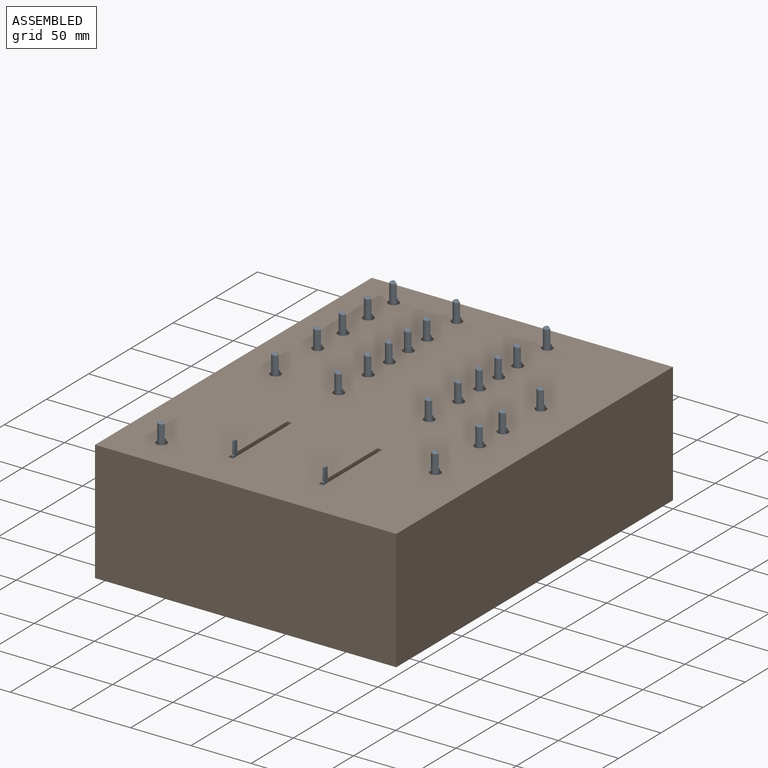
[diagram: assembled view]
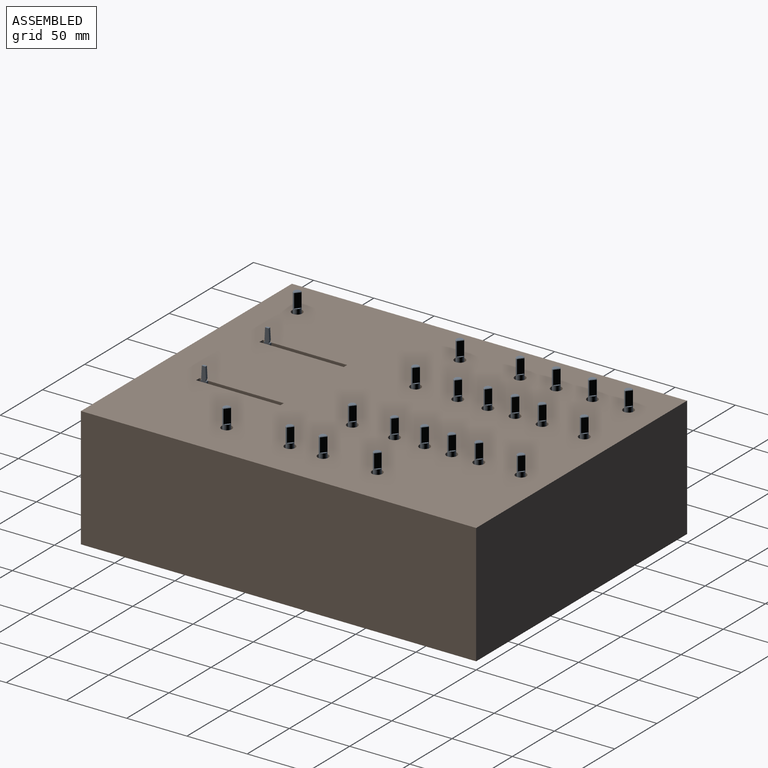
[diagram: assembled view, second angle]
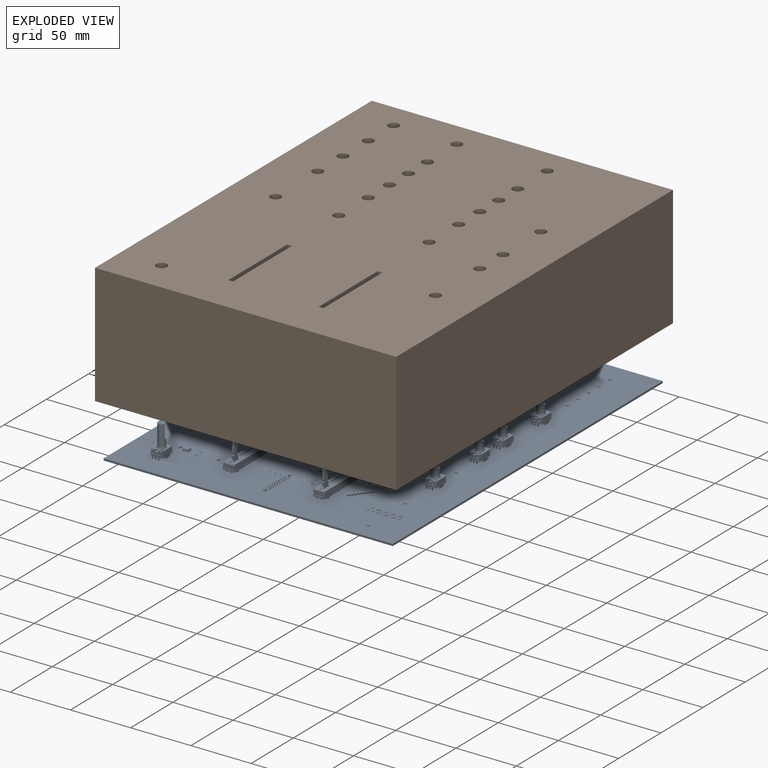
[diagram: exploded view]
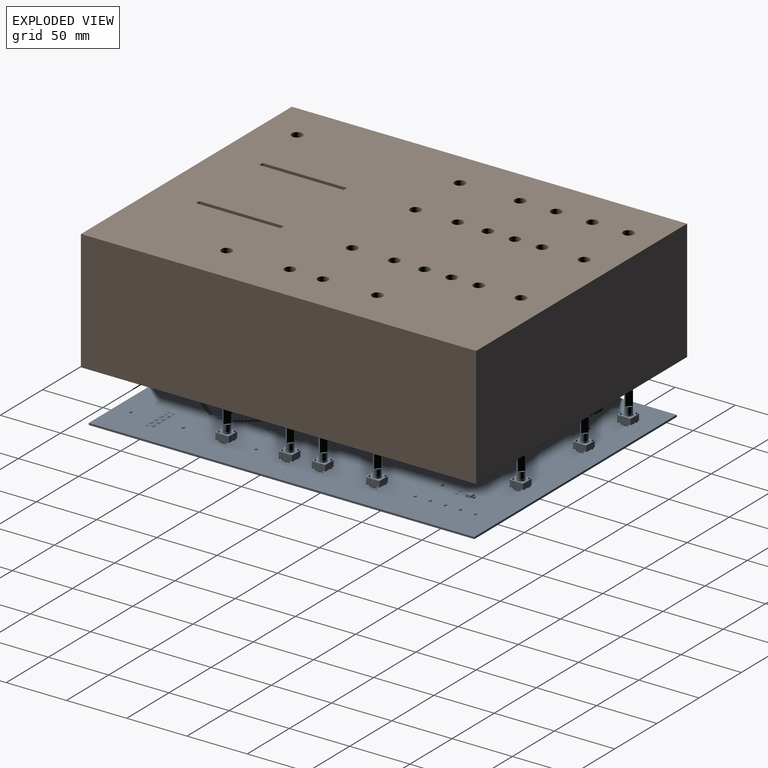
[diagram: exploded view, second angle]
FCSTD DOCUMENT  (FreeCAD 0.21R33771 (Git))
Label: assembly
License: All rights reserved
LicenseURL: http://en.wikipedia.org/wiki/All_rights_reserved
objects: App::Link×172, Part::Feature×19, App::Part×8, Sketcher::SketchObject×5, PartDesign::Pad×2, PartDesign::Pocket×2, PartDesign::Body×2, PartDesign::CoordinateSystem×1, Spreadsheet::Sheet×1
note: 35 computed .brp shape members not serialized (recipe doc carries the construction recipe); baked Part::Feature solids carry a one-line shape summary decoded from their .brp

FEATURE [PartDesign::CoordinateSystem] Local_CS_c454
  AttacherType = Attacher::AttachEngine3D
  MapMode = 2
  Support = -> [X_Axis001]
FEATURE [Part::Feature] Pcb_c454
  shape: bbox 240 x 320 x 1.6 mm, 169 faces (baked)
FEATURE [Sketcher::SketchObject] PCB_Sketch_c454
  FullyConstrained = false
  sketch-geometry (4):
    g0: LineSegment StartX=0 StartY=0 StartZ=0 EndX=240 EndY=0 EndZ=0
    g1: LineSegment StartX=240 StartY=-320 StartZ=0 EndX=240 EndY=0 EndZ=0
    g2: LineSegment StartX=0 StartY=-320 StartZ=0 EndX=0 EndY=0 EndZ=0
    g3: LineSegment StartX=240 StartY=-320 StartZ=0 EndX=0 EndY=-320 EndZ=0
  constraints (4):
    c: Coincident(g2,g3)
    c: Coincident(g0,g2)
    c: Coincident(g1,g3)
    c: Coincident(g0,g1)
FEATURE [App::Part] Board_Geoms_c454
  Group = -> [Pcb_c454,PCB_Sketch_c454]
  Origin = -> Origin002
FEATURE [Part::Feature] Shape  label="R208_R_0805_2012Metric_4c39b0defd06"
  Placement = pos=(106,-140,0) rot=(0,0,-1;1.5708rad)
  shape: bbox 1.2 x 2 x 0.45 mm, 26 faces (baked)
FEATURE [Part::Feature] Part__Feature  label="PTV09A-4225F-B104"
  shape: bbox 11.4 x 10.6 x 11 mm, 100 faces (baked)
FEATURE [Part::Feature] Part__Feature001  label="PTV09A-4225F-B105"
  shape: bbox 7 x 18.9 x 7 mm, 11 faces (baked)
FEATURE [Part::Feature] Part__Feature002  label="PTV09A-4225F-B106"
  shape: bbox 1.5 x 6.725 x 0.6 mm, 19 faces (baked)
FEATURE [Part::Feature] Part__Feature003  label="PTV09A-4225F-B107"
  shape: bbox 1.5 x 6.725 x 0.6 mm, 19 faces (baked)
FEATURE [Part::Feature] Part__Feature004  label="PTV09A-4225F-B108"
  shape: bbox 1.5 x 6.725 x 0.6 mm, 19 faces (baked)
FEATURE [Part::Feature] Part__Feature005  label="PTV09A-4225F-B109"
  shape: bbox 9.45 x 7.4 x 12 mm, 34 faces (baked)
FEATURE [App::Part] PTV09A_4225F_B104  label="RV402_PTV09A-4225F-B110_fbfc8b850fa7"
  Group = -> [Part__Feature,Part__Feature001,Part__Feature002,Part__Feature003,Part__Feature004,Part__Feature005]
  Origin = -> Origin008
  Placement = pos=(30,-109.05,0) rot=(1,0,0;1.5708rad)
FEATURE [App::Link] RV402_PTV09A_4225F_B110_fbfc8b850fa7_ln_  label="RV418_PTV09A-4225F-B110_2d688163e7d1"
  LinkPlacement = pos=(157.5,-54.05,0) rot=(1,0,0;1.5708rad)
  LinkedObject = -> PTV09A_4225F_B104
  Placement = pos=(157.5,-54.05,0) rot=(1,0,0;1.5708rad)
FEATURE [Part::Feature] Shape001  label="D216_D_0805_5594bfa4e61c"
  Placement = pos=(141.025,-110,0) rot=(0,0,1;0rad)
  shape: bbox 2 x 1.27 x 0.8 mm, 39 faces (baked)
FEATURE [App::Link] RV402_PTV09A_4225F_B110_fbfc8b850fa7_ln_001  label="RV417_PTV09A-4225F-B110_7fe4f421bce8"
  LinkPlacement = pos=(210,-226.55,0) rot=(1,0,0;1.5708rad)
  LinkedObject = -> PTV09A_4225F_B104
  Placement = pos=(210,-226.55,0) rot=(1,0,0;1.5708rad)
FEATURE [App::Link] R208_R_0805_2012Metric_4c39b0defd06_ln_  label="R312_R_0805_2012Metric_ef045fc08535"
  LinkPlacement = pos=(178,-214,0) rot=(0,0,1;1.5708rad)
  LinkedObject = -> Shape
  Placement = pos=(178,-214,0) rot=(0,0,1;1.5708rad)
FEATURE [App::Link] R208_R_0805_2012Metric_4c39b0defd06_ln_001  label="R219_R_0805_2012Metric_111bd99cd9e1"
  LinkPlacement = pos=(117,-140,0) rot=(0,0,-1;1.5708rad)
  LinkedObject = -> Shape
  Placement = pos=(117,-140,0) rot=(0,0,-1;1.5708rad)
FEATURE [App::Link] R208_R_0805_2012Metric_4c39b0defd06_ln_002  label="R240_R_0805_2012Metric_e68515676e1e"
  LinkPlacement = pos=(143,-242,0) rot=(0,0,1;3.14159rad)
  LinkedObject = -> Shape
  Placement = pos=(143,-242,0) rot=(0,0,1;3.14159rad)
FEATURE [App::Link] R208_R_0805_2012Metric_4c39b0defd06_ln_003  label="R206_R_0805_2012Metric_35fbc29ccc57"
  LinkPlacement = pos=(102,-140,0) rot=(0,0,-1;1.5708rad)
  LinkedObject = -> Shape
  Placement = pos=(102,-140,0) rot=(0,0,-1;1.5708rad)
FEATURE [App::Link] D216_D_0805_5594bfa4e61c_ln_  label="D227_D_0805_f1191d759c10"
  LinkPlacement = pos=(30,-215,0) rot=(0,0,1;0rad)
  LinkedObject = -> Shape001
  Placement = pos=(30,-215,0) rot=(0,0,1;0rad)
FEATURE [App::Link] R208_R_0805_2012Metric_4c39b0defd06_ln_004  label="R332_R_0805_2012Metric_aa549b432111"
  LinkPlacement = pos=(206,-281,0) rot=(0,0,1;1.5708rad)
  LinkedObject = -> Shape
  Placement = pos=(206,-281,0) rot=(0,0,1;1.5708rad)
FEATURE [App::Link] RV402_PTV09A_4225F_B110_fbfc8b850fa7_ln_002  label="RV411_PTV09A-4225F-B110_0f7be24aa515"
  LinkPlacement = pos=(82.5,-99.05,0) rot=(1,0,0;1.5708rad)
  LinkedObject = -> PTV09A_4225F_B104
  Placement = pos=(82.5,-99.05,0) rot=(1,0,0;1.5708rad)
FEATURE [App::Link] D216_D_0805_5594bfa4e61c_ln_001  label="D226_D_0805_973987f7510b"
  LinkPlacement = pos=(30,-185,0) rot=(0,0,1;0rad)
  LinkedObject = -> Shape001
  Placement = pos=(30,-185,0) rot=(0,0,1;0rad)
FEATURE [App::Link] D216_D_0805_5594bfa4e61c_ln_002  label="D228_D_0805_9972d4551b44"
  LinkPlacement = pos=(210,-262.5,0) rot=(0,0,1;3.14159rad)
  LinkedObject = -> Shape001
  Placement = pos=(210,-262.5,0) rot=(0,0,1;3.14159rad)
FEATURE [Part::Feature] Shape002  label="C205_C_0805_2012Metric_57fc318d2a2e"
  Placement = pos=(108,-238,0) rot=(0,0,1;3.14159rad)
  shape: bbox 2 x 1.25 x 1.25 mm, 28 faces (baked)
FEATURE [App::Link] R208_R_0805_2012Metric_4c39b0defd06_ln_005  label="R213_R_0805_2012Metric_71fda06ab67b"
  LinkPlacement = pos=(140,-140,0) rot=(0,0,-1;1.5708rad)
  LinkedObject = -> Shape
  Placement = pos=(140,-140,0) rot=(0,0,-1;1.5708rad)
FEATURE [App::Link] C205_C_0805_2012Metric_57fc318d2a2e_ln_  label="C501_C_0805_2012Metric_9183103fb27e"
  LinkPlacement = pos=(66,-278,0) rot=(0,0,1;1.5708rad)
  LinkedObject = -> Shape002
  Placement = pos=(66,-278,0) rot=(0,0,1;1.5708rad)
FEATURE [App::Link] R208_R_0805_2012Metric_4c39b0defd06_ln_006  label="R238_R_0805_2012Metric_c2040b682ab9"
  LinkPlacement = pos=(143,-246,0) rot=(0,0,1;3.14159rad)
  LinkedObject = -> Shape
  Placement = pos=(143,-246,0) rot=(0,0,1;3.14159rad)
FEATURE [App::Link] R208_R_0805_2012Metric_4c39b0defd06_ln_007  label="R315_R_0805_2012Metric_a91a2a27738c"
  LinkPlacement = pos=(215,-285,0) rot=(0,0,1;1.5708rad)
  LinkedObject = -> Shape
  Placement = pos=(215,-285,0) rot=(0,0,1;1.5708rad)
FEATURE [App::Link] C205_C_0805_2012Metric_57fc318d2a2e_ln_001  label="C304_C_0805_2012Metric_e8270bf949c6"
  LinkPlacement = pos=(175.5,-232,0) rot=(0,0,1;3.14159rad)
  LinkedObject = -> Shape002
  Placement = pos=(175.5,-232,0) rot=(0,0,1;3.14159rad)
FEATURE [App::Link] R208_R_0805_2012Metric_4c39b0defd06_ln_008  label="R218_R_0805_2012Metric_d44f68ebda2a"
  LinkPlacement = pos=(115,-140,0) rot=(0,0,-1;1.5708rad)
  LinkedObject = -> Shape
  Placement = pos=(115,-140,0) rot=(0,0,-1;1.5708rad)
FEATURE [App::Link] R208_R_0805_2012Metric_4c39b0defd06_ln_009  label="R306_R_0805_2012Metric_cc47268ca4a4"
  LinkPlacement = pos=(49,-229,0) rot=(0,0,1;1.5708rad)
  LinkedObject = -> Shape
  Placement = pos=(49,-229,0) rot=(0,0,1;1.5708rad)
FEATURE [App::Link] C205_C_0805_2012Metric_57fc318d2a2e_ln_002  label="C204_C_0805_2012Metric_fa1396efef3d"
  LinkPlacement = pos=(109,-186.5,0) rot=(0,0,-1;1.5708rad)
  LinkedObject = -> Shape002
  Placement = pos=(109,-186.5,0) rot=(0,0,-1;1.5708rad)
FEATURE [App::Link] R208_R_0805_2012Metric_4c39b0defd06_ln_010  label="R333_R_0805_2012Metric_ce0cf9ada83e"
  LinkPlacement = pos=(40,-225,0) rot=(0,0,1;1.5708rad)
  LinkedObject = -> Shape
  Placement = pos=(40,-225,0) rot=(0,0,1;1.5708rad)
FEATURE [App::Link] R208_R_0805_2012Metric_4c39b0defd06_ln_011  label="R203_R_0805_2012Metric_47c25ef46f04"
  LinkPlacement = pos=(96,-140,0) rot=(0,0,-1;1.5708rad)
  LinkedObject = -> Shape
  Placement = pos=(96,-140,0) rot=(0,0,-1;1.5708rad)
FEATURE [App::Link] R208_R_0805_2012Metric_4c39b0defd06_ln_012  label="R316_R_0805_2012Metric_ca1573e6cbf5"
  LinkPlacement = pos=(177,-210,0) rot=(0,0,1;1.5708rad)
  LinkedObject = -> Shape
  Placement = pos=(177,-210,0) rot=(0,0,1;1.5708rad)
FEATURE [App::Link] R208_R_0805_2012Metric_4c39b0defd06_ln_013  label="R216_R_0805_2012Metric_f6e6accf18e9"
  LinkPlacement = pos=(134,-140,0) rot=(0,0,-1;1.5708rad)
  LinkedObject = -> Shape
  Placement = pos=(134,-140,0) rot=(0,0,-1;1.5708rad)
FEATURE [App::Link] R208_R_0805_2012Metric_4c39b0defd06_ln_014  label="R307_R_0805_2012Metric_32e96b299db5"
  LinkPlacement = pos=(217,-285,0) rot=(0,0,1;1.5708rad)
  LinkedObject = -> Shape
  Placement = pos=(217,-285,0) rot=(0,0,1;1.5708rad)
FEATURE [App::Link] D216_D_0805_5594bfa4e61c_ln_003  label="D206_D_0805_2ef9e814d562"
  LinkPlacement = pos=(98.975,-95,0) rot=(0,0,1;3.14159rad)
  LinkedObject = -> Shape001
  Placement = pos=(98.975,-95,0) rot=(0,0,1;3.14159rad)
FEATURE [App::Link] D216_D_0805_5594bfa4e61c_ln_004  label="D213_D_0805_f98dc4f97d3c"
  LinkPlacement = pos=(141.025,-87.5,0) rot=(0,0,1;0rad)
  LinkedObject = -> Shape001
  Placement = pos=(141.025,-87.5,0) rot=(0,0,1;0rad)
FEATURE [App::Link] C205_C_0805_2012Metric_57fc318d2a2e_ln_003  label="C312_C_0805_2012Metric_3116a6c9cd6d"
  LinkPlacement = pos=(172.5,-228,0) rot=(0,0,1;3.14159rad)
  LinkedObject = -> Shape002
  Placement = pos=(172.5,-228,0) rot=(0,0,1;3.14159rad)
FEATURE [App::Link] C205_C_0805_2012Metric_57fc318d2a2e_ln_004  label="C302_C_0805_2012Metric_8ef3d9fda477"
  LinkPlacement = pos=(177,-234,0) rot=(0,0,1;3.14159rad)
  LinkedObject = -> Shape002
  Placement = pos=(177,-234,0) rot=(0,0,1;3.14159rad)
FEATURE [App::Link] R208_R_0805_2012Metric_4c39b0defd06_ln_015  label="R310_R_0805_2012Metric_72e5e267fd08"
  LinkPlacement = pos=(50,-225,0) rot=(0,0,1;1.5708rad)
  LinkedObject = -> Shape
  Placement = pos=(50,-225,0) rot=(0,0,1;1.5708rad)
FEATURE [App::Link] R208_R_0805_2012Metric_4c39b0defd06_ln_016  label="R327_R_0805_2012Metric_acd2e66d89b7"
  LinkPlacement = pos=(212,-281,0) rot=(0,0,1;1.5708rad)
  LinkedObject = -> Shape
  Placement = pos=(212,-281,0) rot=(0,0,1;1.5708rad)
FEATURE [App::Link] D216_D_0805_5594bfa4e61c_ln_005  label="D221_D_0805_d2ebfaa61c48"
  LinkPlacement = pos=(120,-87.5,0) rot=(0,0,1;3.14159rad)
  LinkedObject = -> Shape001
  Placement = pos=(120,-87.5,0) rot=(0,0,1;3.14159rad)
FEATURE [App::Link] C205_C_0805_2012Metric_57fc318d2a2e_ln_005  label="C102_C_0805_2012Metric_8e58a18353ef"
  LinkPlacement = pos=(120,-271,0) rot=(0,0,1;0rad)
  LinkedObject = -> Shape002
  Placement = pos=(120,-271,0) rot=(0,0,1;0rad)
FEATURE [App::Link] RV402_PTV09A_4225F_B110_fbfc8b850fa7_ln_003  label="RV405_PTV09A-4225F-B110_777df1af5e7b"
  LinkPlacement = pos=(210,-101.55,0) rot=(1,0,0;1.5708rad)
  LinkedObject = -> PTV09A_4225F_B104
  Placement = pos=(210,-101.55,0) rot=(1,0,0;1.5708rad)
FEATURE [App::Link] C205_C_0805_2012Metric_57fc318d2a2e_ln_006  label="C303_C_0805_2012Metric_67ba86686d49"
  LinkPlacement = pos=(171,-274,0) rot=(0,0,1;3.14159rad)
  LinkedObject = -> Shape002
  Placement = pos=(171,-274,0) rot=(0,0,1;3.14159rad)
FEATURE [App::Link] R208_R_0805_2012Metric_4c39b0defd06_ln_017  label="R221_R_0805_2012Metric_24614dd06e51"
  LinkPlacement = pos=(121,-140,0) rot=(0,0,-1;1.5708rad)
  LinkedObject = -> Shape
  Placement = pos=(121,-140,0) rot=(0,0,-1;1.5708rad)
FEATURE [App::Link] D216_D_0805_5594bfa4e61c_ln_006  label="D238_D_0805_83ee238d2820"
  LinkPlacement = pos=(210,-70,0) rot=(0,0,1;3.14159rad)
  LinkedObject = -> Shape001
  Placement = pos=(210,-70,0) rot=(0,0,1;3.14159rad)
FEATURE [App::Link] R208_R_0805_2012Metric_4c39b0defd06_ln_018  label="R225_R_0805_2012Metric_8f8ce5a6a82c"
  LinkPlacement = pos=(98,-242,0) rot=(0,0,1;0rad)
  LinkedObject = -> Shape
  Placement = pos=(98,-242,0) rot=(0,0,1;0rad)
FEATURE [App::Link] R208_R_0805_2012Metric_4c39b0defd06_ln_019  label="R311_R_0805_2012Metric_55c13a9a11a5"
  LinkPlacement = pos=(218,-281,0) rot=(0,0,1;1.5708rad)
  LinkedObject = -> Shape
  Placement = pos=(218,-281,0) rot=(0,0,1;1.5708rad)
FEATURE [App::Link] R208_R_0805_2012Metric_4c39b0defd06_ln_020  label="R305_R_0805_2012Metric_9d8b24ee2285"
  LinkPlacement = pos=(221,-285,0) rot=(0,0,1;1.5708rad)
  LinkedObject = -> Shape
  Placement = pos=(221,-285,0) rot=(0,0,1;1.5708rad)
FEATURE [App::Link] C205_C_0805_2012Metric_57fc318d2a2e_ln_007  label="C316_C_0805_2012Metric_57bf25107868"
  LinkPlacement = pos=(171,-226,0) rot=(0,0,1;3.14159rad)
  LinkedObject = -> Shape002
  Placement = pos=(171,-226,0) rot=(0,0,1;3.14159rad)
FEATURE [App::Link] RV402_PTV09A_4225F_B110_fbfc8b850fa7_ln_004  label="RV420_PTV09A-4225F-B110_34591843202a"
  LinkPlacement = pos=(157.5,-159.05,0) rot=(1,0,0;1.5708rad)
  LinkedObject = -> PTV09A_4225F_B104
  Placement = pos=(157.5,-159.05,0) rot=(1,0,0;1.5708rad)
FEATURE [App::Link] D216_D_0805_5594bfa4e61c_ln_007  label="D210_D_0805_c96be0ac7fab"
  LinkPlacement = pos=(141.025,-65,0) rot=(0,0,1;0rad)
  LinkedObject = -> Shape001
  Placement = pos=(141.025,-65,0) rot=(0,0,1;0rad)
FEATURE [App::Link] R208_R_0805_2012Metric_4c39b0defd06_ln_021  label="R502_R_0805_2012Metric_57ad433b3f67"
  LinkPlacement = pos=(49,-274,0) rot=(0,0,1;3.14159rad)
  LinkedObject = -> Shape
  Placement = pos=(49,-274,0) rot=(0,0,1;3.14159rad)
FEATURE [App::Link] R208_R_0805_2012Metric_4c39b0defd06_ln_022  label="R308_R_0805_2012Metric_ac712e10e020"
  LinkPlacement = pos=(52,-225,0) rot=(0,0,1;1.5708rad)
  LinkedObject = -> Shape
  Placement = pos=(52,-225,0) rot=(0,0,1;1.5708rad)
FEATURE [App::Link] D216_D_0805_5594bfa4e61c_ln_008  label="D220_D_0805_52212993868f"
  LinkPlacement = pos=(120,-80,0) rot=(0,0,1;3.14159rad)
  LinkedObject = -> Shape001
  Placement = pos=(120,-80,0) rot=(0,0,1;3.14159rad)
FEATURE [App::Link] RV402_PTV09A_4225F_B110_fbfc8b850fa7_ln_005  label="RV404_PTV09A-4225F-B110_428bc7d2de2c"
  LinkPlacement = pos=(30,-79.05,0) rot=(1,0,0;1.5708rad)
  LinkedObject = -> PTV09A_4225F_B104
  Placement = pos=(30,-79.05,0) rot=(1,0,0;1.5708rad)
FEATURE [App::Link] RV402_PTV09A_4225F_B110_fbfc8b850fa7_ln_006  label="RV419_PTV09A-4225F-B110_c9e950f6c76d"
  LinkPlacement = pos=(157.5,-99.05,0) rot=(1,0,0;1.5708rad)
  LinkedObject = -> PTV09A_4225F_B104
  Placement = pos=(157.5,-99.05,0) rot=(1,0,0;1.5708rad)
FEATURE [App::Link] C205_C_0805_2012Metric_57fc318d2a2e_ln_008  label="C601_C_0805_2012Metric_e417f57173ae"
  LinkPlacement = pos=(50,-65,0) rot=(0,0,1;0rad)
  LinkedObject = -> Shape002
  Placement = pos=(50,-65,0) rot=(0,0,1;0rad)
FEATURE [App::Link] D216_D_0805_5594bfa4e61c_ln_009  label="D239_D_0805_84c5e8a55d69"
  LinkPlacement = pos=(210,-32.5,0) rot=(0,0,1;3.14159rad)
  LinkedObject = -> Shape001
  Placement = pos=(210,-32.5,0) rot=(0,0,1;3.14159rad)
FEATURE [App::Link] D216_D_0805_5594bfa4e61c_ln_010  label="D215_D_0805_a1d5e6c136e6"
  LinkPlacement = pos=(141.025,-102.5,0) rot=(0,0,1;0rad)
  LinkedObject = -> Shape001
  Placement = pos=(141.025,-102.5,0) rot=(0,0,1;0rad)
FEATURE [Part::Feature] Shape003  label="U701_SOIC_8_39x49mm_P127mm_2f58332c61cc"
  Placement = pos=(188,-40,0) rot=(0,0,1;0rad)
  shape: bbox 6 x 4.9 x 1.75 mm, 156 faces (baked)
FEATURE [App::Link] RV402_PTV09A_4225F_B110_fbfc8b850fa7_ln_007  label="RV407_PTV09A-4225F-B110_546b22319ea3"
  LinkPlacement = pos=(82.5,-76.55,0) rot=(1,0,0;1.5708rad)
  LinkedObject = -> PTV09A_4225F_B104
  Placement = pos=(82.5,-76.55,0) rot=(1,0,0;1.5708rad)
FEATURE [App::Link] R208_R_0805_2012Metric_4c39b0defd06_ln_023  label="R230_R_0805_2012Metric_2bcdb1c95b5a"
  LinkPlacement = pos=(143,-252,0) rot=(0,0,1;0rad)
  LinkedObject = -> Shape
  Placement = pos=(143,-252,0) rot=(0,0,1;0rad)
FEATURE [App::Link] R208_R_0805_2012Metric_4c39b0defd06_ln_024  label="R309_R_0805_2012Metric_8528c9f19a28"
  LinkPlacement = pos=(220,-281,0) rot=(0,0,1;1.5708rad)
  LinkedObject = -> Shape
  Placement = pos=(220,-281,0) rot=(0,0,1;1.5708rad)
FEATURE [Part::Feature] Shape004  label="U301_TSSOP_24_44x78mm_P065mm_04e58543ee46"
  Placement = pos=(180,-250,0) rot=(0,0,1;1.5708rad)
  shape: bbox 7.8 x 6.4 x 0.97 mm, 396 faces (baked)
FEATURE [App::Link] R208_R_0805_2012Metric_4c39b0defd06_ln_025  label="R303_R_0805_2012Metric_fc88b7861eef"
  LinkPlacement = pos=(140,-272,0) rot=(0,0,-1;1.5708rad)
  LinkedObject = -> Shape
  Placement = pos=(140,-272,0) rot=(0,0,-1;1.5708rad)
FEATURE [App::Link] D216_D_0805_5594bfa4e61c_ln_011  label="D233_D_0805_8746985ae42c"
  LinkPlacement = pos=(30,-230,0) rot=(0,0,1;0rad)
  LinkedObject = -> Shape001
  Placement = pos=(30,-230,0) rot=(0,0,1;0rad)
FEATURE [App::Link] D216_D_0805_5594bfa4e61c_ln_012  label="D217_D_0805_2a3ada436470"
  LinkPlacement = pos=(120,-57.5,0) rot=(0,0,1;3.14159rad)
  LinkedObject = -> Shape001
  Placement = pos=(120,-57.5,0) rot=(0,0,1;3.14159rad)
FEATURE [App::Link] R208_R_0805_2012Metric_4c39b0defd06_ln_026  label="R334_R_0805_2012Metric_2f2dfa104db6"
  LinkPlacement = pos=(209,-285,0) rot=(0,0,1;1.5708rad)
  LinkedObject = -> Shape
  Placement = pos=(209,-285,0) rot=(0,0,1;1.5708rad)
FEATURE [App::Link] RV402_PTV09A_4225F_B110_fbfc8b850fa7_ln_008  label="RV421_PTV09A-4225F-B110_5a81db7f2a9e"
  LinkPlacement = pos=(157.5,-19.05,0) rot=(1,0,0;1.5708rad)
  LinkedObject = -> PTV09A_4225F_B104
  Placement = pos=(157.5,-19.05,0) rot=(1,0,0;1.5708rad)
FEATURE [App::Link] R208_R_0805_2012Metric_4c39b0defd06_ln_027  label="R223_R_0805_2012Metric_c6ebd7290bac"
  LinkPlacement = pos=(125,-140,0) rot=(0,0,-1;1.5708rad)
  LinkedObject = -> Shape
  Placement = pos=(125,-140,0) rot=(0,0,-1;1.5708rad)
FEATURE [App::Link] R208_R_0805_2012Metric_4c39b0defd06_ln_028  label="R227_R_0805_2012Metric_e444b336612b"
  LinkPlacement = pos=(98,-248,0) rot=(0,0,1;0rad)
  LinkedObject = -> Shape
  Placement = pos=(98,-248,0) rot=(0,0,1;0rad)
FEATURE [App::Link] R208_R_0805_2012Metric_4c39b0defd06_ln_029  label="R211_R_0805_2012Metric_4a630d97fa43"
  LinkPlacement = pos=(144,-140,0) rot=(0,0,-1;1.5708rad)
  LinkedObject = -> Shape
  Placement = pos=(144,-140,0) rot=(0,0,-1;1.5708rad)
FEATURE [App::Link] R208_R_0805_2012Metric_4c39b0defd06_ln_030  label="R212_R_0805_2012Metric_4456a0502743"
  LinkPlacement = pos=(142,-140,0) rot=(0,0,-1;1.5708rad)
  LinkedObject = -> Shape
  Placement = pos=(142,-140,0) rot=(0,0,-1;1.5708rad)
FEATURE [App::Link] R208_R_0805_2012Metric_4c39b0defd06_ln_031  label="R233_R_0805_2012Metric_96aa5766d6ff"
  LinkPlacement = pos=(98,-250,0) rot=(0,0,1;0rad)
  LinkedObject = -> Shape
  Placement = pos=(98,-250,0) rot=(0,0,1;0rad)
FEATURE [App::Link] R208_R_0805_2012Metric_4c39b0defd06_ln_032  label="R314_R_0805_2012Metric_7f0e5e389910"
  LinkPlacement = pos=(47,-229,0) rot=(0,0,1;1.5708rad)
  LinkedObject = -> Shape
  Placement = pos=(47,-229,0) rot=(0,0,1;1.5708rad)
FEATURE [App::Link] R208_R_0805_2012Metric_4c39b0defd06_ln_033  label="R222_R_0805_2012Metric_d1e6bee3c121"
  LinkPlacement = pos=(123,-140,0) rot=(0,0,-1;1.5708rad)
  LinkedObject = -> Shape
  Placement = pos=(123,-140,0) rot=(0,0,-1;1.5708rad)
FEATURE [App::Link] R208_R_0805_2012Metric_4c39b0defd06_ln_034  label="R207_R_0805_2012Metric_a58e80ceedb3"
  LinkPlacement = pos=(104,-140,0) rot=(0,0,-1;1.5708rad)
  LinkedObject = -> Shape
  Placement = pos=(104,-140,0) rot=(0,0,-1;1.5708rad)
FEATURE [App::Link] R208_R_0805_2012Metric_4c39b0defd06_ln_035  label="R226_R_0805_2012Metric_6a41c46d4445"
  LinkPlacement = pos=(98,-244,0) rot=(0,0,1;0rad)
  LinkedObject = -> Shape
  Placement = pos=(98,-244,0) rot=(0,0,1;0rad)
FEATURE [App::Link] R208_R_0805_2012Metric_4c39b0defd06_ln_036  label="R702_R_0805_2012Metric_035ae6a0418a"
  LinkPlacement = pos=(190,-50,0) rot=(0,0,1;1.5708rad)
  LinkedObject = -> Shape
  Placement = pos=(190,-50,0) rot=(0,0,1;1.5708rad)
FEATURE [App::Link] C205_C_0805_2012Metric_57fc318d2a2e_ln_009  label="C307_C_0805_2012Metric_c048f7a678a0"
  LinkPlacement = pos=(181.5,-240,0) rot=(0,0,1;3.14159rad)
  LinkedObject = -> Shape002
  Placement = pos=(181.5,-240,0) rot=(0,0,1;3.14159rad)
FEATURE [App::Link] D216_D_0805_5594bfa4e61c_ln_013  label="D209_D_0805_57ac0a770d31"
  LinkPlacement = pos=(141.025,-57.5,0) rot=(0,0,1;0rad)
  LinkedObject = -> Shape001
  Placement = pos=(141.025,-57.5,0) rot=(0,0,1;0rad)
FEATURE [App::Link] RV402_PTV09A_4225F_B110_fbfc8b850fa7_ln_009  label="RV423_PTV09A-4225F-B110_d4dcee926d11"
  LinkPlacement = pos=(157.5,-124.05,0) rot=(1,0,0;1.5708rad)
  LinkedObject = -> PTV09A_4225F_B104
  Placement = pos=(157.5,-124.05,0) rot=(1,0,0;1.5708rad)
FEATURE [App::Link] C205_C_0805_2012Metric_57fc318d2a2e_ln_010  label="C701_C_0805_2012Metric_b39916a6eb4e"
  LinkPlacement = pos=(185,-65,0) rot=(0,0,1;0rad)
  LinkedObject = -> Shape002
  Placement = pos=(185,-65,0) rot=(0,0,1;0rad)
FEATURE [App::Link] R208_R_0805_2012Metric_4c39b0defd06_ln_037  label="R209_R_0805_2012Metric_dec2e8099fcd"
  LinkPlacement = pos=(148,-140,0) rot=(0,0,-1;1.5708rad)
  LinkedObject = -> Shape
  Placement = pos=(148,-140,0) rot=(0,0,-1;1.5708rad)
FEATURE [App::Link] D216_D_0805_5594bfa4e61c_ln_014  label="D232_D_0805_8b511a062afd"
  LinkPlacement = pos=(30,-200,0) rot=(0,0,1;0rad)
  LinkedObject = -> Shape001
  Placement = pos=(30,-200,0) rot=(0,0,1;0rad)
FEATURE [App::Link] R208_R_0805_2012Metric_4c39b0defd06_ln_038  label="R205_R_0805_2012Metric_997c135bf18b"
  LinkPlacement = pos=(100,-140,0) rot=(0,0,-1;1.5708rad)
  LinkedObject = -> Shape
  Placement = pos=(100,-140,0) rot=(0,0,-1;1.5708rad)
FEATURE [App::Link] R208_R_0805_2012Metric_4c39b0defd06_ln_039  label="R220_R_0805_2012Metric_5ca1392b96bd"
  LinkPlacement = pos=(119,-140,0) rot=(0,0,-1;1.5708rad)
  LinkedObject = -> Shape
  Placement = pos=(119,-140,0) rot=(0,0,-1;1.5708rad)
FEATURE [App::Link] C205_C_0805_2012Metric_57fc318d2a2e_ln_011  label="C309_C_0805_2012Metric_dfd11c0dae9f"
  LinkPlacement = pos=(174,-270,0) rot=(0,0,1;3.14159rad)
  LinkedObject = -> Shape002
  Placement = pos=(174,-270,0) rot=(0,0,1;3.14159rad)
FEATURE [App::Link] R208_R_0805_2012Metric_4c39b0defd06_ln_040  label="R304_R_0805_2012Metric_0db1363c3ae1"
  LinkPlacement = pos=(53,-229,0) rot=(0,0,1;1.5708rad)
  LinkedObject = -> Shape
  Placement = pos=(53,-229,0) rot=(0,0,1;1.5708rad)
FEATURE [App::Link] U701_SOIC_8_39x49mm_P127mm_2f58332c61cc_ln_  label="U601_SOIC_8_39x49mm_P127mm_704a5620e659"
  LinkPlacement = pos=(52.5,-40,0) rot=(0,0,1;0rad)
  LinkedObject = -> Shape003
  Placement = pos=(52.5,-40,0) rot=(0,0,1;0rad)
FEATURE [App::Link] D216_D_0805_5594bfa4e61c_ln_015  label="D218_D_0805_8e644251d4b5"
  LinkPlacement = pos=(120,-65.5,0) rot=(0,0,1;3.14159rad)
  LinkedObject = -> Shape001
  Placement = pos=(120,-65.5,0) rot=(0,0,1;3.14159rad)
FEATURE [App::Link] C205_C_0805_2012Metric_57fc318d2a2e_ln_012  label="C315_C_0805_2012Metric_150236a83678"
  LinkPlacement = pos=(178.5,-264,0) rot=(0,0,1;3.14159rad)
  LinkedObject = -> Shape002
  Placement = pos=(178.5,-264,0) rot=(0,0,1;3.14159rad)
FEATURE [App::Link] D216_D_0805_5594bfa4e61c_ln_016  label="D229_D_0805_9ada93fef228"
  LinkPlacement = pos=(105,-127.5,0) rot=(0,0,1;0rad)
  LinkedObject = -> Shape001
  Placement = pos=(105,-127.5,0) rot=(0,0,1;0rad)
FEATURE [App::Link] R208_R_0805_2012Metric_4c39b0defd06_ln_041  label="R324_R_0805_2012Metric_024a42e88fbc"
  LinkPlacement = pos=(202,-281,0) rot=(0,0,1;1.5708rad)
  LinkedObject = -> Shape
  Placement = pos=(202,-281,0) rot=(0,0,1;1.5708rad)
FEATURE [App::Link] R208_R_0805_2012Metric_4c39b0defd06_ln_042  label="R217_R_0805_2012Metric_4bc8dcc301aa"
  LinkPlacement = pos=(113,-140,0) rot=(0,0,-1;1.5708rad)
  LinkedObject = -> Shape
  Placement = pos=(113,-140,0) rot=(0,0,-1;1.5708rad)
FEATURE [App::Link] D216_D_0805_5594bfa4e61c_ln_017  label="D237_D_0805_aff24a7d7c7f"
  LinkPlacement = pos=(210,-202,0) rot=(0,0,1;3.14159rad)
  LinkedObject = -> Shape001
  Placement = pos=(210,-202,0) rot=(0,0,1;3.14159rad)
FEATURE [App::Link] R208_R_0805_2012Metric_4c39b0defd06_ln_043  label="R302_R_0805_2012Metric_0806a8f40ea9"
  LinkPlacement = pos=(138,-266,0) rot=(0,0,-1;1.5708rad)
  LinkedObject = -> Shape
  Placement = pos=(138,-266,0) rot=(0,0,-1;1.5708rad)
FEATURE [App::Link] C205_C_0805_2012Metric_57fc318d2a2e_ln_013  label="C310_C_0805_2012Metric_9ca8db228caf"
  LinkPlacement = pos=(180,-262,0) rot=(0,0,1;3.14159rad)
  LinkedObject = -> Shape002
  Placement = pos=(180,-262,0) rot=(0,0,1;3.14159rad)
FEATURE [App::Link] D216_D_0805_5594bfa4e61c_ln_018  label="D202_D_0805_a4ffd18e2ad7"
  LinkPlacement = pos=(98.975,-65,0) rot=(0,0,1;3.14159rad)
  LinkedObject = -> Shape001
  Placement = pos=(98.975,-65,0) rot=(0,0,1;3.14159rad)
FEATURE [App::Link] RV402_PTV09A_4225F_B110_fbfc8b850fa7_ln_010  label="RV414_PTV09A-4225F-B110_5a0dc3a46b90"
  LinkPlacement = pos=(210,-174.05,0) rot=(1,0,0;1.5708rad)
  LinkedObject = -> PTV09A_4225F_B104
  Placement = pos=(210,-174.05,0) rot=(1,0,0;1.5708rad)
FEATURE [App::Link] R208_R_0805_2012Metric_4c39b0defd06_ln_044  label="R701_R_0805_2012Metric_f2ce15dca941"
  LinkPlacement = pos=(185.5,-50,0) rot=(0,0,1;1.5708rad)
  LinkedObject = -> Shape
  Placement = pos=(185.5,-50,0) rot=(0,0,1;1.5708rad)
FEATURE [App::Link] D216_D_0805_5594bfa4e61c_ln_019  label="D212_D_0805_c4d7681d4aa0"
  LinkPlacement = pos=(141.025,-80,0) rot=(0,0,1;0rad)
  LinkedObject = -> Shape001
  Placement = pos=(141.025,-80,0) rot=(0,0,1;0rad)
FEATURE [App::Link] R208_R_0805_2012Metric_4c39b0defd06_ln_045  label="R313_R_0805_2012Metric_537a98c67393"
  LinkPlacement = pos=(195,-285,0) rot=(0,0,1;1.5708rad)
  LinkedObject = -> Shape
  Placement = pos=(195,-285,0) rot=(0,0,1;1.5708rad)
FEATURE [App::Link] R208_R_0805_2012Metric_4c39b0defd06_ln_046  label="R322_R_0805_2012Metric_fbe06de1a790"
  LinkPlacement = pos=(43,-229,0) rot=(0,0,1;1.5708rad)
  LinkedObject = -> Shape
  Placement = pos=(43,-229,0) rot=(0,0,1;1.5708rad)
FEATURE [App::Link] C205_C_0805_2012Metric_57fc318d2a2e_ln_014  label="C308_C_0805_2012Metric_8323e5a847b8"
  LinkPlacement = pos=(174,-230,0) rot=(0,0,1;3.14159rad)
  LinkedObject = -> Shape002
  Placement = pos=(174,-230,0) rot=(0,0,1;3.14159rad)
FEATURE [App::Link] R208_R_0805_2012Metric_4c39b0defd06_ln_047  label="R321_R_0805_2012Metric_d0015c330063"
  LinkPlacement = pos=(180,-214,0) rot=(0,0,1;1.5708rad)
  LinkedObject = -> Shape
  Placement = pos=(180,-214,0) rot=(0,0,1;1.5708rad)
FEATURE [App::Link] C205_C_0805_2012Metric_57fc318d2a2e_ln_015  label="C203_C_0805_2012Metric_234ba0a58169"
  LinkPlacement = pos=(126.5,-186.5,0) rot=(0,0,-1;1.5708rad)
  LinkedObject = -> Shape002
  Placement = pos=(126.5,-186.5,0) rot=(0,0,-1;1.5708rad)
FEATURE [App::Link] D216_D_0805_5594bfa4e61c_ln_020  label="D201_D_0805_05ca7b26e4e9"
  LinkPlacement = pos=(98.975,-57.5,0) rot=(0,0,1;3.14159rad)
  LinkedObject = -> Shape001
  Placement = pos=(98.975,-57.5,0) rot=(0,0,1;3.14159rad)
FEATURE [App::Link] R208_R_0805_2012Metric_4c39b0defd06_ln_048  label="R326_R_0805_2012Metric_7b2f84fd01bf"
  LinkPlacement = pos=(44,-225,0) rot=(0,0,1;1.5708rad)
  LinkedObject = -> Shape
  Placement = pos=(44,-225,0) rot=(0,0,1;1.5708rad)
FEATURE [App::Link] R208_R_0805_2012Metric_4c39b0defd06_ln_049  label="R237_R_0805_2012Metric_15e4ad987dd1"
  LinkPlacement = pos=(143,-248,0) rot=(0,0,1;3.14159rad)
  LinkedObject = -> Shape
  Placement = pos=(143,-248,0) rot=(0,0,1;3.14159rad)
FEATURE [App::Link] R208_R_0805_2012Metric_4c39b0defd06_ln_050  label="R228_R_0805_2012Metric_336fbc179429"
  LinkPlacement = pos=(143,-250,0) rot=(0,0,1;3.14159rad)
  LinkedObject = -> Shape
  Placement = pos=(143,-250,0) rot=(0,0,1;3.14159rad)
FEATURE [App::Link] R208_R_0805_2012Metric_4c39b0defd06_ln_051  label="R501_R_0805_2012Metric_fbf796ed0888"
  LinkPlacement = pos=(49,-279.5,0) rot=(0,0,1;3.14159rad)
  LinkedObject = -> Shape
  Placement = pos=(49,-279.5,0) rot=(0,0,1;3.14159rad)
FEATURE [App::Link] R208_R_0805_2012Metric_4c39b0defd06_ln_052  label="R214_R_0805_2012Metric_8cb4fdcab1b9"
  LinkPlacement = pos=(138,-140,0) rot=(0,0,-1;1.5708rad)
  LinkedObject = -> Shape
  Placement = pos=(138,-140,0) rot=(0,0,-1;1.5708rad)
FEATURE [App::Link] C205_C_0805_2012Metric_57fc318d2a2e_ln_016  label="C201_C_0805_2012Metric_6ae85826352a"
  LinkPlacement = pos=(133,-253,0) rot=(0,0,1;0rad)
  LinkedObject = -> Shape002
  Placement = pos=(133,-253,0) rot=(0,0,1;0rad)
FEATURE [App::Link] U701_SOIC_8_39x49mm_P127mm_2f58332c61cc_ln_001  label="U501_SOIC_8_39x49mm_P127mm_d98fd939b2e9"
  LinkPlacement = pos=(39,-277,0) rot=(0,0,1;1.5708rad)
  LinkedObject = -> Shape003
  Placement = pos=(39,-277,0) rot=(0,0,1;1.5708rad)
FEATURE [App::Link] C205_C_0805_2012Metric_57fc318d2a2e_ln_017  label="C502_C_0805_2012Metric_f3847df53d42"
  LinkPlacement = pos=(33,-276,0) rot=(0,0,-1;1.5708rad)
  LinkedObject = -> Shape002
  Placement = pos=(33,-276,0) rot=(0,0,-1;1.5708rad)
FEATURE [App::Link] D216_D_0805_5594bfa4e61c_ln_021  label="D205_D_0805_c066bc8c9ee6"
  LinkPlacement = pos=(98.975,-87.5,0) rot=(0,0,1;3.14159rad)
  LinkedObject = -> Shape001
  Placement = pos=(98.975,-87.5,0) rot=(0,0,1;3.14159rad)
FEATURE [App::Link] R208_R_0805_2012Metric_4c39b0defd06_ln_053  label="R601_R_0805_2012Metric_b3788a8da0a9"
  LinkPlacement = pos=(50,-50,0) rot=(0,0,1;1.5708rad)
  LinkedObject = -> Shape
  Placement = pos=(50,-50,0) rot=(0,0,1;1.5708rad)
FEATURE [App::Link] C205_C_0805_2012Metric_57fc318d2a2e_ln_018  label="C306_C_0805_2012Metric_a4788608a2be"
  LinkPlacement = pos=(178.5,-236,0) rot=(0,0,1;3.14159rad)
  LinkedObject = -> Shape002
  Placement = pos=(178.5,-236,0) rot=(0,0,1;3.14159rad)
FEATURE [App::Link] D216_D_0805_5594bfa4e61c_ln_022  label="D224_D_0805_b5e89308c2a0"
  LinkPlacement = pos=(120,-110,0) rot=(0,0,1;3.14159rad)
  LinkedObject = -> Shape001
  Placement = pos=(120,-110,0) rot=(0,0,1;3.14159rad)
FEATURE [App::Link] C205_C_0805_2012Metric_57fc318d2a2e_ln_019  label="C305_C_0805_2012Metric_be16dae28013"
  LinkPlacement = pos=(172.5,-272,0) rot=(0,0,1;3.14159rad)
  LinkedObject = -> Shape002
  Placement = pos=(172.5,-272,0) rot=(0,0,1;3.14159rad)
FEATURE [App::Link] R208_R_0805_2012Metric_4c39b0defd06_ln_054  label="R202_R_0805_2012Metric_7031f21a603a"
  LinkPlacement = pos=(94,-140,0) rot=(0,0,-1;1.5708rad)
  LinkedObject = -> Shape
  Placement = pos=(94,-140,0) rot=(0,0,-1;1.5708rad)
FEATURE [App::Link] D216_D_0805_5594bfa4e61c_ln_023  label="D208_D_0805_4f65a371bea1"
  LinkPlacement = pos=(98.975,-110,0) rot=(0,0,1;3.14159rad)
  LinkedObject = -> Shape001
  Placement = pos=(98.975,-110,0) rot=(0,0,1;3.14159rad)
FEATURE [App::Link] D216_D_0805_5594bfa4e61c_ln_024  label="D207_D_0805_d24407119433"
  LinkPlacement = pos=(98.975,-102.5,0) rot=(0,0,1;3.14159rad)
  LinkedObject = -> Shape001
  Placement = pos=(98.975,-102.5,0) rot=(0,0,1;3.14159rad)
FEATURE [App::Link] RV402_PTV09A_4225F_B110_fbfc8b850fa7_ln_011  label="RV410_PTV09A-4225F-B110_55a6fc90acce"
  LinkPlacement = pos=(82.5,-54.05,0) rot=(1,0,0;1.5708rad)
  LinkedObject = -> PTV09A_4225F_B104
  Placement = pos=(82.5,-54.05,0) rot=(1,0,0;1.5708rad)
FEATURE [App::Link] R208_R_0805_2012Metric_4c39b0defd06_ln_055  label="R231_R_0805_2012Metric_3d624326dc27"
  LinkPlacement = pos=(98,-240,0) rot=(0,0,1;0rad)
  LinkedObject = -> Shape
  Placement = pos=(98,-240,0) rot=(0,0,1;0rad)
FEATURE [App::Link] C205_C_0805_2012Metric_57fc318d2a2e_ln_020  label="C301_C_0805_2012Metric_beceb34f7d99"
  LinkPlacement = pos=(172,-250,0) rot=(0,0,-1;1.5708rad)
  LinkedObject = -> Shape002
  Placement = pos=(172,-250,0) rot=(0,0,-1;1.5708rad)
FEATURE [App::Link] R208_R_0805_2012Metric_4c39b0defd06_ln_056  label="R335_R_0805_2012Metric_f0265bf90ed8"
  LinkPlacement = pos=(208,-281,0) rot=(0,0,1;1.5708rad)
  LinkedObject = -> Shape
  Placement = pos=(208,-281,0) rot=(0,0,1;1.5708rad)
FEATURE [App::Link] RV402_PTV09A_4225F_B110_fbfc8b850fa7_ln_012  label="RV413_PTV09A-4225F-B110_416c68d19700"
  LinkPlacement = pos=(30,-159.05,0) rot=(1,0,0;1.5708rad)
  LinkedObject = -> PTV09A_4225F_B104
  Placement = pos=(30,-159.05,0) rot=(1,0,0;1.5708rad)
FEATURE [App::Link] D216_D_0805_5594bfa4e61c_ln_025  label="D240_D_0805_e636dde3b489"
  LinkPlacement = pos=(210,-45,0) rot=(0,0,1;3.14159rad)
  LinkedObject = -> Shape001
  Placement = pos=(210,-45,0) rot=(0,0,1;3.14159rad)
FEATURE [App::Link] R208_R_0805_2012Metric_4c39b0defd06_ln_057  label="R236_R_0805_2012Metric_c4fd61e7698c"
  LinkPlacement = pos=(143,-244,0) rot=(0,0,1;3.14159rad)
  LinkedObject = -> Shape
  Placement = pos=(143,-244,0) rot=(0,0,1;3.14159rad)
FEATURE [App::Link] R208_R_0805_2012Metric_4c39b0defd06_ln_058  label="R204_R_0805_2012Metric_5687fd63ec73"
  LinkPlacement = pos=(98,-140,0) rot=(0,0,-1;1.5708rad)
  LinkedObject = -> Shape
  Placement = pos=(98,-140,0) rot=(0,0,-1;1.5708rad)
FEATURE [App::Link] D216_D_0805_5594bfa4e61c_ln_026  label="D234_D_0805_e2b8cd56fb7d"
  LinkPlacement = pos=(135,-127.5,0) rot=(0,0,1;3.14159rad)
  LinkedObject = -> Shape001
  Placement = pos=(135,-127.5,0) rot=(0,0,1;3.14159rad)
FEATURE [App::Link] RV402_PTV09A_4225F_B110_fbfc8b850fa7_ln_013  label="RV416_PTV09A-4225F-B110_4290622b47be"
  LinkPlacement = pos=(210,-146.55,0) rot=(1,0,0;1.5708rad)
  LinkedObject = -> PTV09A_4225F_B104
  Placement = pos=(210,-146.55,0) rot=(1,0,0;1.5708rad)
FEATURE [App::Link] R208_R_0805_2012Metric_4c39b0defd06_ln_059  label="R235_R_0805_2012Metric_a1c7d9314519"
  LinkPlacement = pos=(143,-238,0) rot=(0,0,1;3.14159rad)
  LinkedObject = -> Shape
  Placement = pos=(143,-238,0) rot=(0,0,1;3.14159rad)
FEATURE [App::Link] RV402_PTV09A_4225F_B110_fbfc8b850fa7_ln_014  label="RV408_PTV09A-4225F-B110_939a9183d41f"
  LinkPlacement = pos=(82.5,-124.05,0) rot=(1,0,0;1.5708rad)
  LinkedObject = -> PTV09A_4225F_B104
  Placement = pos=(82.5,-124.05,0) rot=(1,0,0;1.5708rad)
FEATURE [App::Link] RV402_PTV09A_4225F_B110_fbfc8b850fa7_ln_015  label="RV401_PTV09A-4225F-B110_f4fd12c7f906"
  LinkPlacement = pos=(30,-49.05,0) rot=(1,0,0;1.5708rad)
  LinkedObject = -> PTV09A_4225F_B104
  Placement = pos=(30,-49.05,0) rot=(1,0,0;1.5708rad)
FEATURE [App::Link] D216_D_0805_5594bfa4e61c_ln_027  label="D203_D_0805_85e752a6ddda"
  LinkPlacement = pos=(98.975,-72.5,0) rot=(0,0,1;3.14159rad)
  LinkedObject = -> Shape001
  Placement = pos=(98.975,-72.5,0) rot=(0,0,1;3.14159rad)
FEATURE [App::Link] C205_C_0805_2012Metric_57fc318d2a2e_ln_021  label="C101_C_0805_2012Metric_919e4f89fd0d"
  LinkPlacement = pos=(120,-300,0) rot=(0,0,1;0rad)
  LinkedObject = -> Shape002
  Placement = pos=(120,-300,0) rot=(0,0,1;0rad)
FEATURE [App::Link] D216_D_0805_5594bfa4e61c_ln_028  label="D225_D_0805_0a5fa31051bc"
  LinkPlacement = pos=(82.5,-187.5,0) rot=(0,0,1;3.14159rad)
  LinkedObject = -> Shape001
  Placement = pos=(82.5,-187.5,0) rot=(0,0,1;3.14159rad)
FEATURE [App::Link] R208_R_0805_2012Metric_4c39b0defd06_ln_060  label="R301_R_0805_2012Metric_bed6f4067572"
  LinkPlacement = pos=(138,-270,0) rot=(0,0,1;1.5708rad)
  LinkedObject = -> Shape
  Placement = pos=(138,-270,0) rot=(0,0,1;1.5708rad)
FEATURE [App::Link] R208_R_0805_2012Metric_4c39b0defd06_ln_061  label="R317_R_0805_2012Metric_96997fbd54a9"
  LinkPlacement = pos=(196,-281,0) rot=(0,0,1;1.5708rad)
  LinkedObject = -> Shape
  Placement = pos=(196,-281,0) rot=(0,0,1;1.5708rad)
FEATURE [App::Link] D216_D_0805_5594bfa4e61c_ln_029  label="D219_D_0805_58abe3008923"
  LinkPlacement = pos=(120,-72.5,0) rot=(0,0,1;3.14159rad)
  LinkedObject = -> Shape001
  Placement = pos=(120,-72.5,0) rot=(0,0,1;3.14159rad)
FEATURE [App::Link] C205_C_0805_2012Metric_57fc318d2a2e_ln_022  label="C313_C_0805_2012Metric_b4eb28b94fd3"
  LinkPlacement = pos=(175.5,-268,0) rot=(0,0,1;3.14159rad)
  LinkedObject = -> Shape002
  Placement = pos=(175.5,-268,0) rot=(0,0,1;3.14159rad)
FEATURE [App::Link] R208_R_0805_2012Metric_4c39b0defd06_ln_062  label="R234_R_0805_2012Metric_2da040a4eabe"
  LinkPlacement = pos=(132,-140,0) rot=(0,0,-1;1.5708rad)
  LinkedObject = -> Shape
  Placement = pos=(132,-140,0) rot=(0,0,-1;1.5708rad)
FEATURE [App::Link] R208_R_0805_2012Metric_4c39b0defd06_ln_063  label="R329_R_0805_2012Metric_08804a607e2d"
  LinkPlacement = pos=(205,-285,0) rot=(0,0,1;1.5708rad)
  LinkedObject = -> Shape
  Placement = pos=(205,-285,0) rot=(0,0,1;1.5708rad)
FEATURE [App::Link] RV402_PTV09A_4225F_B110_fbfc8b850fa7_ln_016  label="RV403_PTV09A-4225F-B110_f821fef6e3dd"
  LinkPlacement = pos=(30,-19.05,0) rot=(1,0,0;1.5708rad)
  LinkedObject = -> PTV09A_4225F_B104
  Placement = pos=(30,-19.05,0) rot=(1,0,0;1.5708rad)
FEATURE [App::Link] RV402_PTV09A_4225F_B110_fbfc8b850fa7_ln_017  label="RV412_PTV09A-4225F-B110_56d70095fd49"
  LinkPlacement = pos=(82.5,-159.05,0) rot=(1,0,0;1.5708rad)
  LinkedObject = -> PTV09A_4225F_B104
  Placement = pos=(82.5,-159.05,0) rot=(1,0,0;1.5708rad)
FEATURE [App::Link] C205_C_0805_2012Metric_57fc318d2a2e_ln_023  label="C702_C_0805_2012Metric_17e3169d015e"
  LinkPlacement = pos=(189,-36,0) rot=(0,0,1;0rad)
  LinkedObject = -> Shape002
  Placement = pos=(189,-36,0) rot=(0,0,1;0rad)
FEATURE [App::Link] R208_R_0805_2012Metric_4c39b0defd06_ln_064  label="R224_R_0805_2012Metric_7fe233ce5f87"
  LinkPlacement = pos=(127,-140,0) rot=(0,0,-1;1.5708rad)
  LinkedObject = -> Shape
  Placement = pos=(127,-140,0) rot=(0,0,-1;1.5708rad)
FEATURE [App::Link] C205_C_0805_2012Metric_57fc318d2a2e_ln_024  label="C602_C_0805_2012Metric_3e67f3c0a4a5"
  LinkPlacement = pos=(53,-36,0) rot=(0,0,1;3.14159rad)
  LinkedObject = -> Shape002
  Placement = pos=(53,-36,0) rot=(0,0,1;3.14159rad)
FEATURE [App::Link] R208_R_0805_2012Metric_4c39b0defd06_ln_065  label="R239_R_0805_2012Metric_93f50ebedca7"
  LinkPlacement = pos=(143,-240,0) rot=(0,0,1;3.14159rad)
  LinkedObject = -> Shape
  Placement = pos=(143,-240,0) rot=(0,0,1;3.14159rad)
FEATURE [Part::Feature] Part__Feature006  label="60315DP"
  shape: bbox 75 x 9.659 x 9 mm, 192 faces (baked)
FEATURE [Part::Feature] Part__Feature007  label="60315DP001"
  shape: bbox 75 x 1.2 x 9.4 mm, 30 faces (baked)
FEATURE [Part::Feature] Part__Feature008  label="60315DP002"
  shape: bbox 0.5 x 4.5 x 0.8 mm, 7 faces (baked)
FEATURE [Part::Feature] Part__Feature009  label="60315DP003"
  shape: bbox 0.5 x 4.5 x 0.8 mm, 7 faces (baked)
FEATURE [Part::Feature] Part__Feature010  label="60315DP004"
  shape: bbox 0.5 x 4.5 x 0.8 mm, 7 faces (baked)
FEATURE [Part::Feature] Part__Feature011  label="60315DP005"
  shape: bbox 73.9 x 19.5 x 7.9 mm, 29 faces (baked)
FEATURE [App::Part] _0315DP  label="RV409_60315DP006_c0e4cbf6957f"
  Group = -> [Part__Feature006,Part__Feature007,Part__Feature008,Part__Feature009,Part__Feature010,Part__Feature011]
  Origin = -> Origin009
  Placement = pos=(82.25,-252.02,0) rot=(0.57735,0.57735,0.57735;2.0944rad)
FEATURE [App::Link] D216_D_0805_5594bfa4e61c_ln_030  label="D236_D_0805_dad3f2f6ac87"
  LinkPlacement = pos=(210,-57.5,0) rot=(0,0,1;3.14159rad)
  LinkedObject = -> Shape001
  Placement = pos=(210,-57.5,0) rot=(0,0,1;3.14159rad)
FEATURE [App::Link] C205_C_0805_2012Metric_57fc318d2a2e_ln_025  label="C202_C_0805_2012Metric_b110155abaa1"
  LinkPlacement = pos=(144,-186.5,0) rot=(0,0,-1;1.5708rad)
  LinkedObject = -> Shape002
  Placement = pos=(144,-186.5,0) rot=(0,0,-1;1.5708rad)
FEATURE [App::Link] R208_R_0805_2012Metric_4c39b0defd06_ln_066  label="R318_R_0805_2012Metric_eef23f3e6b70"
  LinkPlacement = pos=(46,-225,0) rot=(0,0,1;1.5708rad)
  LinkedObject = -> Shape
  Placement = pos=(46,-225,0) rot=(0,0,1;1.5708rad)
FEATURE [App::Link] R208_R_0805_2012Metric_4c39b0defd06_ln_067  label="R602_R_0805_2012Metric_99d179895dd1"
  LinkPlacement = pos=(55,-50,0) rot=(0,0,1;1.5708rad)
  LinkedObject = -> Shape
  Placement = pos=(55,-50,0) rot=(0,0,1;1.5708rad)
FEATURE [App::Link] C205_C_0805_2012Metric_57fc318d2a2e_ln_026  label="C314_C_0805_2012Metric_985ff31120b1"
  LinkPlacement = pos=(181.5,-260,0) rot=(0,0,1;3.14159rad)
  LinkedObject = -> Shape002
  Placement = pos=(181.5,-260,0) rot=(0,0,1;3.14159rad)
FEATURE [App::Link] R208_R_0805_2012Metric_4c39b0defd06_ln_068  label="R215_R_0805_2012Metric_5c5c899c1efc"
  LinkPlacement = pos=(136,-140,0) rot=(0,0,-1;1.5708rad)
  LinkedObject = -> Shape
  Placement = pos=(136,-140,0) rot=(0,0,-1;1.5708rad)
FEATURE [App::Link] D216_D_0805_5594bfa4e61c_ln_031  label="D230_D_0805_bae860ef844a"
  LinkPlacement = pos=(210,-306,0) rot=(0,0,1;3.14159rad)
  LinkedObject = -> Shape001
  Placement = pos=(210,-306,0) rot=(0,0,1;3.14159rad)
FEATURE [App::Link] R208_R_0805_2012Metric_4c39b0defd06_ln_069  label="R210_R_0805_2012Metric_8ff7d0668dc2"
  LinkPlacement = pos=(146,-140,0) rot=(0,0,-1;1.5708rad)
  LinkedObject = -> Shape
  Placement = pos=(146,-140,0) rot=(0,0,-1;1.5708rad)
FEATURE [App::Link] R208_R_0805_2012Metric_4c39b0defd06_ln_070  label="R325_R_0805_2012Metric_4e78800979a0"
  LinkPlacement = pos=(181,-210,0) rot=(0,0,1;1.5708rad)
  LinkedObject = -> Shape
  Placement = pos=(181,-210,0) rot=(0,0,1;1.5708rad)
FEATURE [App::Link] R208_R_0805_2012Metric_4c39b0defd06_ln_071  label="R232_R_0805_2012Metric_018d666b3efd"
  LinkPlacement = pos=(98,-246,0) rot=(0,0,1;0rad)
  LinkedObject = -> Shape
  Placement = pos=(98,-246,0) rot=(0,0,1;0rad)
FEATURE [App::Link] D216_D_0805_5594bfa4e61c_ln_032  label="D231_D_0805_ea234891bcd0"
  LinkPlacement = pos=(157.5,-187.5,0) rot=(0,0,1;3.14159rad)
  LinkedObject = -> Shape001
  Placement = pos=(157.5,-187.5,0) rot=(0,0,1;3.14159rad)
FEATURE [App::Link] D216_D_0805_5594bfa4e61c_ln_033  label="D214_D_0805_cd9b72d6d756"
  LinkPlacement = pos=(141.025,-95,0) rot=(0,0,1;0rad)
  LinkedObject = -> Shape001
  Placement = pos=(141.025,-95,0) rot=(0,0,1;0rad)
FEATURE [App::Link] R208_R_0805_2012Metric_4c39b0defd06_ln_072  label="R201_R_0805_2012Metric_91e97f525095"
  LinkPlacement = pos=(92,-140,0) rot=(0,0,-1;1.5708rad)
  LinkedObject = -> Shape
  Placement = pos=(92,-140,0) rot=(0,0,-1;1.5708rad)
FEATURE [App::Link] D216_D_0805_5594bfa4e61c_ln_034  label="D223_D_0805_6050f39e54b2"
  LinkPlacement = pos=(120,-102.5,0) rot=(0,0,1;3.14159rad)
  LinkedObject = -> Shape001
  Placement = pos=(120,-102.5,0) rot=(0,0,1;3.14159rad)
FEATURE [App::Link] RV409_60315DP006_c0e4cbf6957f_ln_  label="RV424_60315DP006_4162eed32672"
  LinkPlacement = pos=(157.25,-252.02,0) rot=(0.57735,0.57735,0.57735;2.0944rad)
  LinkedObject = -> _0315DP
  Placement = pos=(157.25,-252.02,0) rot=(0.57735,0.57735,0.57735;2.0944rad)
FEATURE [App::Link] RV402_PTV09A_4225F_B110_fbfc8b850fa7_ln_018  label="RV406_PTV09A-4225F-B110_04d1c436bef0"
  LinkPlacement = pos=(82.5,-19.05,0) rot=(1,0,0;1.5708rad)
  LinkedObject = -> PTV09A_4225F_B104
  Placement = pos=(82.5,-19.05,0) rot=(1,0,0;1.5708rad)
FEATURE [App::Link] R208_R_0805_2012Metric_4c39b0defd06_ln_073  label="R320_R_0805_2012Metric_6dec1a405a15"
  LinkPlacement = pos=(203,-285,0) rot=(0,0,1;1.5708rad)
  LinkedObject = -> Shape
  Placement = pos=(203,-285,0) rot=(0,0,1;1.5708rad)
FEATURE [App::Link] C205_C_0805_2012Metric_57fc318d2a2e_ln_027  label="C311_C_0805_2012Metric_0e4e8a16ca81"
  LinkPlacement = pos=(180,-238,0) rot=(0,0,1;3.14159rad)
  LinkedObject = -> Shape002
  Placement = pos=(180,-238,0) rot=(0,0,1;3.14159rad)
FEATURE [App::Link] RV402_PTV09A_4225F_B110_fbfc8b850fa7_ln_019  label="RV422_PTV09A-4225F-B110_ef98ac85d9ae"
  LinkPlacement = pos=(157.5,-76.55,0) rot=(1,0,0;1.5708rad)
  LinkedObject = -> PTV09A_4225F_B104
  Placement = pos=(157.5,-76.55,0) rot=(1,0,0;1.5708rad)
FEATURE [App::Link] C205_C_0805_2012Metric_57fc318d2a2e_ln_028  label="C317_C_0805_2012Metric_b9852d27e151"
  LinkPlacement = pos=(177,-266,0) rot=(0,0,1;3.14159rad)
  LinkedObject = -> Shape002
  Placement = pos=(177,-266,0) rot=(0,0,1;3.14159rad)
FEATURE [App::Link] D216_D_0805_5594bfa4e61c_ln_035  label="D204_D_0805_b26bcf066b05"
  LinkPlacement = pos=(98.975,-80,0) rot=(0,0,1;3.14159rad)
  LinkedObject = -> Shape001
  Placement = pos=(98.975,-80,0) rot=(0,0,1;3.14159rad)
FEATURE [App::Link] R208_R_0805_2012Metric_4c39b0defd06_ln_074  label="R331_R_0805_2012Metric_48acb036731e"
  LinkPlacement = pos=(200,-281,0) rot=(0,0,1;1.5708rad)
  LinkedObject = -> Shape
  Placement = pos=(200,-281,0) rot=(0,0,1;1.5708rad)
FEATURE [App::Link] R208_R_0805_2012Metric_4c39b0defd06_ln_075  label="R330_R_0805_2012Metric_ae5f8348da30"
  LinkPlacement = pos=(41,-229,0) rot=(0,0,1;1.5708rad)
  LinkedObject = -> Shape
  Placement = pos=(41,-229,0) rot=(0,0,1;1.5708rad)
FEATURE [App::Link] RV402_PTV09A_4225F_B110_fbfc8b850fa7_ln_020  label="RV415_PTV09A-4225F-B110_e073733d0d46"
  LinkPlacement = pos=(30,-294.05,0) rot=(1,0,0;1.5708rad)
  LinkedObject = -> PTV09A_4225F_B104
  Placement = pos=(30,-294.05,0) rot=(1,0,0;1.5708rad)
FEATURE [App::Link] R208_R_0805_2012Metric_4c39b0defd06_ln_076  label="R323_R_0805_2012Metric_d9e28cf948de"
  LinkPlacement = pos=(211,-285,0) rot=(0,0,1;1.5708rad)
  LinkedObject = -> Shape
  Placement = pos=(211,-285,0) rot=(0,0,1;1.5708rad)
FEATURE [App::Link] R208_R_0805_2012Metric_4c39b0defd06_ln_077  label="R229_R_0805_2012Metric_aa71d6c363a2"
  LinkPlacement = pos=(108,-140,0) rot=(0,0,1;1.5708rad)
  LinkedObject = -> Shape
  Placement = pos=(108,-140,0) rot=(0,0,1;1.5708rad)
FEATURE [App::Link] R208_R_0805_2012Metric_4c39b0defd06_ln_078  label="R319_R_0805_2012Metric_d86e7e260863"
  LinkPlacement = pos=(214,-281,0) rot=(0,0,1;1.5708rad)
  LinkedObject = -> Shape
  Placement = pos=(214,-281,0) rot=(0,0,1;1.5708rad)
FEATURE [App::Link] D216_D_0805_5594bfa4e61c_ln_036  label="D222_D_0805_5a03ba760e4f"
  LinkPlacement = pos=(120,-95,0) rot=(0,0,1;3.14159rad)
  LinkedObject = -> Shape001
  Placement = pos=(120,-95,0) rot=(0,0,1;3.14159rad)
FEATURE [App::Link] D216_D_0805_5594bfa4e61c_ln_037  label="D211_D_0805_538a81cd4bdb"
  LinkPlacement = pos=(141.025,-72.5,0) rot=(0,0,1;0rad)
  LinkedObject = -> Shape001
  Placement = pos=(141.025,-72.5,0) rot=(0,0,1;0rad)
FEATURE [App::Link] D216_D_0805_5594bfa4e61c_ln_038  label="D235_D_0805_363f88d8eb9f"
  LinkPlacement = pos=(210,-20,0) rot=(0,0,1;3.14159rad)
  LinkedObject = -> Shape001
  Placement = pos=(210,-20,0) rot=(0,0,1;3.14159rad)
FEATURE [App::Link] R208_R_0805_2012Metric_4c39b0defd06_ln_079  label="R328_R_0805_2012Metric_5584abb674fb"
  LinkPlacement = pos=(199,-285,0) rot=(0,0,1;1.5708rad)
  LinkedObject = -> Shape
  Placement = pos=(199,-285,0) rot=(0,0,1;1.5708rad)
FEATURE [App::Part] Top_c454
  Group = -> [Shape,PTV09A_4225F_B104,RV402_PTV09A_4225F_B110_fbfc8b850fa7_ln_,Shape001,RV402_PTV09A_4225F_B110_fbfc8b850fa7_ln_001,R208_R_0805_2012Metric_4c39b0defd06_ln_,R208_R_0805_2012Metric_4c39b0defd06_ln_001,R208_R_0805_2012Metric_4c39b0defd06_ln_002,R208_R_0805_2012Metric_4c39b0defd06_ln_003,D216_D_0805_5594bfa4e61c_ln_,R208_R_0805_2012Metric_4c39b0defd06_ln_004,+168 more]
  Origin = -> Origin004
FEATURE [Part::Feature] Shape005  label="J101_PinSocket_2x10_P254mm_Vertical_12a3ff176f86"
  Placement = pos=(121.25,-297,-1.6) rot=(1,0,0;3.14159rad)
  shape: bbox 5.08 x 25.4 x 10.1 mm, 630 faces (baked)
FEATURE [App::Part] Bot_c454
  Group = -> [Shape005]
  Origin = -> Origin010
FEATURE [App::Part] Step_Models_c454
  Group = -> [Top_c454,Bot_c454]
  Origin = -> Origin003
FEATURE [App::Part] Board_c454  label="io_daughterboard-rounded"
  Group = -> [Local_CS_c454,Board_Geoms_c454,Step_Models_c454]
  Origin = -> Origin001
  Placement = pos=(5,-5,-5) rot=(0,0,1;0rad)
  expr: .Placement.Base.x = Spreadsheet.wall_clearence + Spreadsheet.wall_thickness
  expr: .Placement.Base.y = -(Spreadsheet.wall_clearence + Spreadsheet.wall_thickness)
FEATURE [Sketcher::SketchObject] Sketch  label="outdimensions"
  FullyConstrained = true
  MapMode = 5
  Support = -> [XY_Plane011]
  expr: Constraints[10] = Spreadsheet.pcb_length + 2 * (Spreadsheet.wall_clearence + Spreadsheet.wall_clearence)
  expr: Constraints[9] = Spreadsheet.pcb_width + 2 * (Spreadsheet.wall_thickness + Spreadsheet.wall_clearence)
  sketch-geometry (4):
    g0: LineSegment StartX=0 StartY=0 StartZ=0 EndX=250 EndY=0 EndZ=0
    g1: LineSegment StartX=250 StartY=0 StartZ=0 EndX=250 EndY=-328 EndZ=0
    g2: LineSegment StartX=250 StartY=-328 StartZ=0 EndX=0 EndY=-328 EndZ=0
    g3: LineSegment StartX=0 StartY=-328 StartZ=0 EndX=0 EndY=0 EndZ=0
  constraints (11):
    c: Coincident(g0,g1)
    c: Coincident(g1,g2)
    c: Coincident(g2,g3)
    c: Coincident(g3,g0)
    c: Horizontal(g0)
    c: Horizontal(g2)
    c: Vertical(g1)
    c: Vertical(g3)
    c: Coincident(g0,g-1)
    c: DistanceX(g0,g0) = 250
    c: DistanceY(g1,g1) = 328
FEATURE [PartDesign::Pad] Pad  label="frontplate_box"
  Direction = (0,0,1)
  Length = 5
  Length2 = 100
  Profile = -> Sketch
  ReferenceAxis = -> Sketch [N_Axis]
  Type = 0
FEATURE [Spreadsheet::Sheet] Spreadsheet
  cells = A1='pcb_length; B1(pcb_length)=320; A2='pcb_width; B2(pcb_width)=240; A3='wall_thickness; B3(wall_thickness)=3; A4='wall_clearence; B4(wall_clearence)=2; A5='pot_stick_clearance; B5(pot_stick_clearance)=2; A6='pot_stick_diameter; B6(pot_stick_diameter)=6.8; A7='first_col_offset; B7(first_col_offset)=30; A8='second_col_offset; B8(second_col_offset)=82.5; A9='third_col_offset; B9(third_col_offset)=157.5; A10='fourth_col_offset; B10(fourth_col_offset)=210; A11='gain_row_offset; B11(gain_row_offset)==26.05 - 7; A12='spare2_row_offset; B12(spare2_row_offset)==56.05 - 7; A13='hi_row_offset; B13(hi_row_offset)==61.05 - 7; A14='hi_mid_row_offset; B14(hi_mid_row_offset)==83.55 - 7; A15='spare3_row_offset; B15(spare3_row_offset)==86.05 - 7; A16='lo_mid_row_offset; B16(lo_mid_row_offset)==106.05 - 7; A17='spare5_row_offset; B17(spare5_row_offset)==108.55 - 7; A18='spare4_row_offset; B18(spare4_row_offset)==116.05 - 7; A19='low_row_offset; B19(low_row_offset)==131.05 - 7; A20='sfx_param_1_row_offset; B20(sfx_param_1_row_offset)==153.55 - 7; A21='col_fx_row_offset; B21(col_fx_row_offset)==166.05 - 7; A22='sfx_param_2_row_offset; B22(sfx_param_2_row_offset)==181.057 - 7; A23='sfx_wet_row_offset; B23(sfx_wet_row_offset)==233.55 - 7; A24='cue_mix_row_offset; B24(cue_mix_row_offset)==301.05 - 7; A25='fader_hole_length; B25(fader_hole_length)=70; A26='fader_hole_width; B26(fader_hole_width)=4; A27='fader_hole_row_offset; B27(fader_hole_row_offset)==289.02 - (73.5 - B25) / 2
FEATURE [Sketcher::SketchObject] Sketch001  label="Frontplate holes"
  FullyConstrained = true
  MapMode = 5
  Placement = pos=(0,0,5) rot=(0,0,1;0rad)
  Support = -> [Pad]
  expr: Constraints[0] = Spreadsheet.pot_stick_diameter + Spreadsheet.pot_stick_clearance
  expr: Constraints[10] = Spreadsheet.hi_row_offset
  expr: Constraints[12] = Spreadsheet.hi_mid_row_offset
  expr: Constraints[14] = Spreadsheet.spare3_row_offset
  expr: Constraints[15] = Spreadsheet.lo_mid_row_offset
  expr: Constraints[17] = Spreadsheet.spare5_row_offset
  expr: Constraints[18] = Spreadsheet.spare4_row_offset
  expr: Constraints[19] = Spreadsheet.low_row_offset
  expr: Constraints[1] = Spreadsheet.second_col_offset + Spreadsheet.wall_thickness + Spreadsheet.wall_clearence
  expr: Constraints[21] = Spreadsheet.fourth_col_offset
  expr: Constraints[22] = Spreadsheet.col_fx_row_offset
  expr: Constraints[25] = Spreadsheet.sfx_param_1_row_offset
  expr: Constraints[26] = Spreadsheet.sfx_param_2_row_offset
  expr: Constraints[27] = Spreadsheet.sfx_wet_row_offset
  expr: Constraints[28] = Spreadsheet.cue_mix_row_offset
  expr: Constraints[2] = Spreadsheet.third_col_offset + Spreadsheet.wall_thickness + Spreadsheet.wall_clearence
  expr: Constraints[5] = Spreadsheet.wall_thickness + Spreadsheet.wall_clearence
  expr: Constraints[6] = Spreadsheet.wall_thickness + Spreadsheet.wall_clearence
  expr: Constraints[7] = Spreadsheet.first_col_offset
  expr: Constraints[86] = Spreadsheet.fader_hole_width
  expr: Constraints[87] = Spreadsheet.fader_hole_length
  expr: Constraints[89] = Spreadsheet.fader_hole_row_offset
  expr: Constraints[8] = Spreadsheet.gain_row_offset
  expr: Constraints[9] = Spreadsheet.spare2_row_offset
  sketch-geometry (33):
    g0: Circle CenterX=35 CenterY=-24.05 CenterZ=0 NormalX=0 NormalY=0 NormalZ=1 AngleXU=0 Radius=4.4
    g1: Circle CenterX=87.5 CenterY=-24.05 CenterZ=0 NormalX=0 NormalY=0 NormalZ=1 AngleXU=0 Radius=4.4
    g2: Circle CenterX=162.5 CenterY=-24.05 CenterZ=0 NormalX=0 NormalY=0 NormalZ=1 AngleXU=0 Radius=4.4
    g3: GeomPoint X=5 Y=-5 Z=0
    g4: Circle CenterX=35 CenterY=-54.05 CenterZ=0 NormalX=0 NormalY=0 NormalZ=1 AngleXU=0 Radius=4.4
    g5: Circle CenterX=87.5 CenterY=-59.05 CenterZ=0 NormalX=0 NormalY=0 NormalZ=1 AngleXU=0 Radius=4.4
    g6: Circle CenterX=162.5 CenterY=-59.05 CenterZ=0 NormalX=0 NormalY=0 NormalZ=1 AngleXU=0 Radius=4.4
    g7: Circle CenterX=87.5 CenterY=-81.55 CenterZ=0 NormalX=0 NormalY=0 NormalZ=1 AngleXU=0 Radius=4.4
    g8: Circle CenterX=162.5 CenterY=-81.55 CenterZ=0 NormalX=0 NormalY=0 NormalZ=1 AngleXU=0 Radius=4.4
    g9: Circle CenterX=35 CenterY=-84.05 CenterZ=0 NormalX=0 NormalY=0 NormalZ=1 AngleXU=0 Radius=4.4
    g10: Circle CenterX=87.5 CenterY=-104.05 CenterZ=0 NormalX=0 NormalY=0 NormalZ=1 AngleXU=0 Radius=4.4
    g11: Circle CenterX=162.5 CenterY=-104.05 CenterZ=0 NormalX=0 NormalY=0 NormalZ=1 AngleXU=0 Radius=4.4
    g12: Circle CenterX=87.5 CenterY=-129.05 CenterZ=0 NormalX=0 NormalY=0 NormalZ=1 AngleXU=0 Radius=4.4
    g13: Circle CenterX=162.5 CenterY=-129.05 CenterZ=0 NormalX=0 NormalY=0 NormalZ=1 AngleXU=0 Radius=4.4
    g14: Circle CenterX=215 CenterY=-106.55 CenterZ=0 NormalX=0 NormalY=0 NormalZ=1 AngleXU=0 Radius=4.4
    g15: Circle CenterX=35 CenterY=-114.05 CenterZ=0 NormalX=0 NormalY=0 NormalZ=1 AngleXU=0 Radius=4.4
    g16: Circle CenterX=35 CenterY=-164.05 CenterZ=0 NormalX=0 NormalY=0 NormalZ=1 AngleXU=0 Radius=4.4
    g17: Circle CenterX=87.5 CenterY=-164.05 CenterZ=0 NormalX=0 NormalY=0 NormalZ=1 AngleXU=0 Radius=4.4
    g18: Circle CenterX=162.5 CenterY=-164.05 CenterZ=0 NormalX=0 NormalY=0 NormalZ=1 AngleXU=0 Radius=4.4
    g19: Circle CenterX=215 CenterY=-151.55 CenterZ=0 NormalX=0 NormalY=0 NormalZ=1 AngleXU=0 Radius=4.4
    g20: Circle CenterX=215 CenterY=-179.057 CenterZ=0 NormalX=0 NormalY=0 NormalZ=1 AngleXU=0 Radius=4.4
    g21: Circle CenterX=215 CenterY=-231.55 CenterZ=0 NormalX=0 NormalY=0 NormalZ=1 AngleXU=0 Radius=4.4
    g22: Circle CenterX=35 CenterY=-299.05 CenterZ=0 NormalX=0 NormalY=0 NormalZ=1 AngleXU=0 Radius=4.4
    g23: LineSegment StartX=85.5 StartY=-222.27 StartZ=0 EndX=85.5 EndY=-292.27 EndZ=0
    g24: LineSegment StartX=85.5 StartY=-292.27 StartZ=0 EndX=89.5 EndY=-292.27 EndZ=0
    g25: LineSegment StartX=89.5 StartY=-292.27 StartZ=0 EndX=89.5 EndY=-222.27 EndZ=0
    g26: LineSegment StartX=89.5 StartY=-222.27 StartZ=0 EndX=85.5 EndY=-222.27 EndZ=0
    g27: GeomPoint X=87.5 Y=-257.27 Z=0
    g28: LineSegment StartX=160.5 StartY=-222.27 StartZ=0 EndX=160.5 EndY=-292.27 EndZ=0
    g29: LineSegment StartX=160.5 StartY=-292.27 StartZ=0 EndX=164.5 EndY=-292.27 EndZ=0
    g30: LineSegment StartX=164.5 StartY=-292.27 StartZ=0 EndX=164.5 EndY=-222.27 EndZ=0
    g31: LineSegment StartX=164.5 StartY=-222.27 StartZ=0 EndX=160.5 EndY=-222.27 EndZ=0
    g32: GeomPoint X=162.5 Y=-257.27 Z=0
  constraints (94):
    c: Diameter(g0) = 8.8
    c: DistanceX(g-1,g1) = 87.5
    c: DistanceX(g-1,g2) = 162.5
    c: Horizontal(g2,g1)
    c: Horizontal(g1,g0)
    c: DistanceX(g-1,g3) = 5
    c: DistanceY(g3,g-1) = 5
    c: DistanceX(g3,g0) = 30
    c: DistanceY(g0,g3) = 19.05
    c: DistanceY(g4,g3) = 49.05
    c: DistanceY(g5,g3) = 54.05
    c: Horizontal(g5,g6)
    c: DistanceY(g7,g3) = 76.55
    c: Horizontal(g8,g7)
    c: DistanceY(g9,g3) = 79.05
    c: DistanceY(g10,g3) = 99.05
    c: Horizontal(g11,g10)
    c: DistanceY(g14,g3) = 101.55
    c: DistanceY(g15,g3) = 109.05
    c: DistanceY(g12,g3) = 124.05
    c: Horizontal(g13,g12)
    c: DistanceX(g3,g14) = 210
    c: DistanceY(g16,g3) = 159.05
    c: Horizontal(g17,g16)
    c: Horizontal(g16,g18)
    c: DistanceY(g19,g3) = 146.55
    c: DistanceY(g20,g3) = 174.057
    c: DistanceY(g21,g3) = 226.55
    c: DistanceY(g22,g3) = 294.05
    c: Equal(g0,g1)
    c: Equal(g1,g2)
    c: Equal(g2,g4)
    c: Equal(g4,g5)
    c: Equal(g5,g6)
    c: Equal(g6,g7)
    c: Equal(g7,g8)
    c: Equal(g8,g9)
    c: Equal(g9,g10)
    c: Equal(g10,g11)
    c: Equal(g11,g12)
    c: Equal(g12,g13)
    c: Equal(g13,g14)
    c: Equal(g14,g15)
    c: Equal(g15,g16)
    c: Equal(g16,g17)
    c: Equal(g17,g18)
    c: Equal(g18,g19)
    c: Equal(g19,g20)
    c: Equal(g20,g21)
    c: Equal(g21,g22)
    c: Vertical(g0,g4)
    c: Vertical(g4,g9)
    c: Vertical(g9,g15)
    c: Vertical(g15,g16)
    c: Vertical(g16,g22)
    c: Vertical(g1,g5)
    c: Vertical(g5,g7)
    c: Vertical(g7,g10)
    c: Vertical(g10,g12)
    c: Vertical(g12,g17)
    c: Vertical(g2,g6)
    c: Vertical(g6,g8)
    c: Vertical(g8,g11)
    c: Vertical(g11,g13)
    c: Vertical(g13,g18)
    c: Vertical(g14,g19)
    c: Vertical(g19,g20)
    c: Vertical(g20,g21)
    c: Coincident(g23,g24)
    c: Coincident(g24,g25)
    c: Coincident(g25,g26)
    c: Coincident(g26,g23)
    c: Horizontal(g24)
    c: Horizontal(g26)
    c: Vertical(g23)
    c: Vertical(g25)
    c: Symmetric(g24,g23,g27)
    c: Coincident(g28,g29)
    c: Coincident(g29,g30)
    c: Coincident(g30,g31)
    c: Coincident(g31,g28)
    c: Horizontal(g29)
    c: Horizontal(g31)
    c: Vertical(g28)
    c: Vertical(g30)
    c: Symmetric(g29,g28,g32)
    c: DistanceX(g26,g26) = 4
    c: DistanceY(g23,g23) = 70
    c: Vertical(g27,g17)
    c: DistanceY(g23,g3) = 287.27
    c: Horizontal(g28,g24)
    c: Horizontal(g28,g25)
    c: Equal(g31,g26)
    c: Vertical(g18,g32)
FEATURE [PartDesign::Pocket] Pocket
  BaseFeature = -> Pad
  Direction = (0,0,-1)
  Length = 5
  Length2 = 5
  Profile = -> Sketch001
  ReferenceAxis = -> Sketch001 [N_Axis]
  Type = 0
FEATURE [PartDesign::Body] Body  label="Frontplate"
  Group = -> [Pad,Sketch,Sketch001,Pocket]
  Origin = -> Origin011
  Tip = -> Pocket
FEATURE [Sketcher::SketchObject] Sketch002  label="outerdimensions2"
  FullyConstrained = true
  MapMode = 5
  Support = -> [XY_Plane012]
  expr: Constraints[10] = Spreadsheet.pcb_length + 2 * (Spreadsheet.wall_clearence + Spreadsheet.wall_clearence)
  expr: Constraints[9] = Spreadsheet.pcb_width + 2 * (Spreadsheet.wall_thickness + Spreadsheet.wall_clearence)
  sketch-geometry (4):
    g0: LineSegment StartX=0 StartY=0 StartZ=0 EndX=250 EndY=0 EndZ=0
    g1: LineSegment StartX=250 StartY=0 StartZ=0 EndX=250 EndY=-328 EndZ=0
    g2: LineSegment StartX=250 StartY=-328 StartZ=0 EndX=0 EndY=-328 EndZ=0
    g3: LineSegment StartX=0 StartY=-328 StartZ=0 EndX=0 EndY=0 EndZ=0
  constraints (11):
    c: Coincident(g0,g1)
    c: Coincident(g1,g2)
    c: Coincident(g2,g3)
    c: Coincident(g3,g0)
    c: Horizontal(g0)
    c: Horizontal(g2)
    c: Vertical(g1)
    c: Vertical(g3)
    c: Coincident(g0,g-1)
    c: DistanceX(g0,g0) = 250
    c: DistanceY(g1,g1) = 328
FEATURE [PartDesign::Pad] Pad001
  Direction = (0,0,1)
  Length = 95
  Length2 = 10
  Profile = -> Sketch002
  ReferenceAxis = -> Sketch002 [N_Axis]
  Reversed = true
  Type = 0
FEATURE [Sketcher::SketchObject] Sketch003
  FullyConstrained = true
  MapMode = 5
  Support = -> [Pad001]
  expr: Constraints[10] = Spreadsheet.pcb_width + 2 * Spreadsheet.wall_clearence
  expr: Constraints[11] = Spreadsheet.pcb_length + 2 * Spreadsheet.wall_clearence
  expr: Constraints[8] = Spreadsheet.wall_thickness
  expr: Constraints[9] = Spreadsheet.wall_thickness
  sketch-geometry (4):
    g0: LineSegment StartX=3 StartY=-3 StartZ=0 EndX=247 EndY=-3 EndZ=0
    g1: LineSegment StartX=247 StartY=-3 StartZ=0 EndX=247 EndY=-327 EndZ=0
    g2: LineSegment StartX=247 StartY=-327 StartZ=0 EndX=3 EndY=-327 EndZ=0
    g3: LineSegment StartX=3 StartY=-327 StartZ=0 EndX=3 EndY=-3 EndZ=0
  constraints (12):
    c: Coincident(g0,g1)
    c: Coincident(g1,g2)
    c: Coincident(g2,g3)
    c: Coincident(g3,g0)
    c: Horizontal(g0)
    c: Horizontal(g2)
    c: Vertical(g1)
    c: Vertical(g3)
    c: DistanceY(g0,g-1) = 3
    c: DistanceX(g-1,g0) = 3
    c: DistanceX(g0,g0) = 244
    c: DistanceY(g3,g3) = 324
FEATURE [PartDesign::Pocket] Pocket001
  BaseFeature = -> Pad001
  Direction = (0,0,-1)
  Length = 90
  Length2 = 5
  Profile = -> Sketch003
  ReferenceAxis = -> Sketch003 [N_Axis]
  Type = 0
FEATURE [PartDesign::Body] Body001  label="Box"
  Group = -> [Sketch002,Pad001,Sketch003,Pocket001]
  Origin = -> Origin012
  Tip = -> Pocket001
FEATURE [App::Part] Part  label="Case"
  Group = -> [Body,Spreadsheet,Body001]
  Origin = -> Origin
